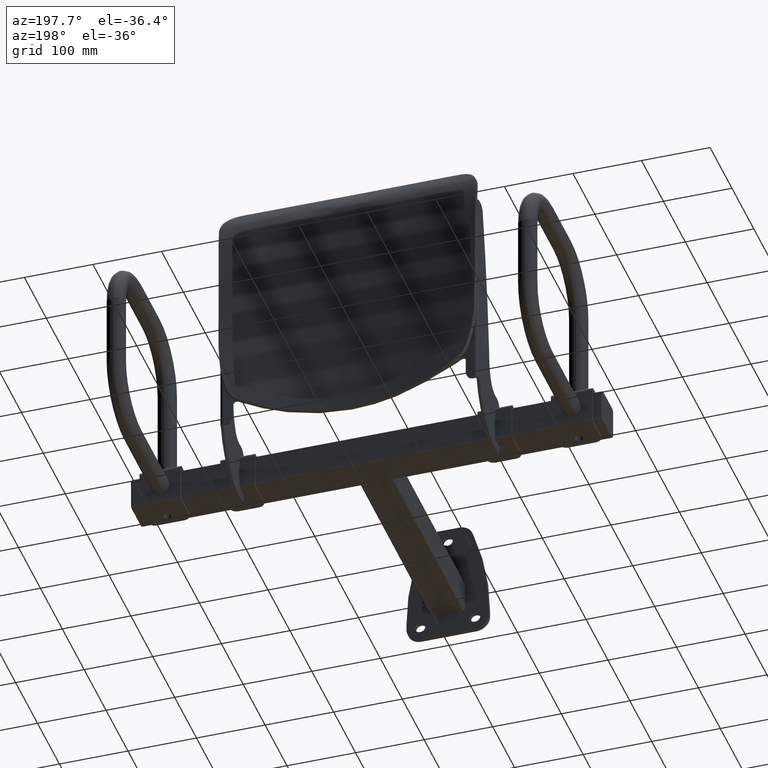
[diagram: clean part render]
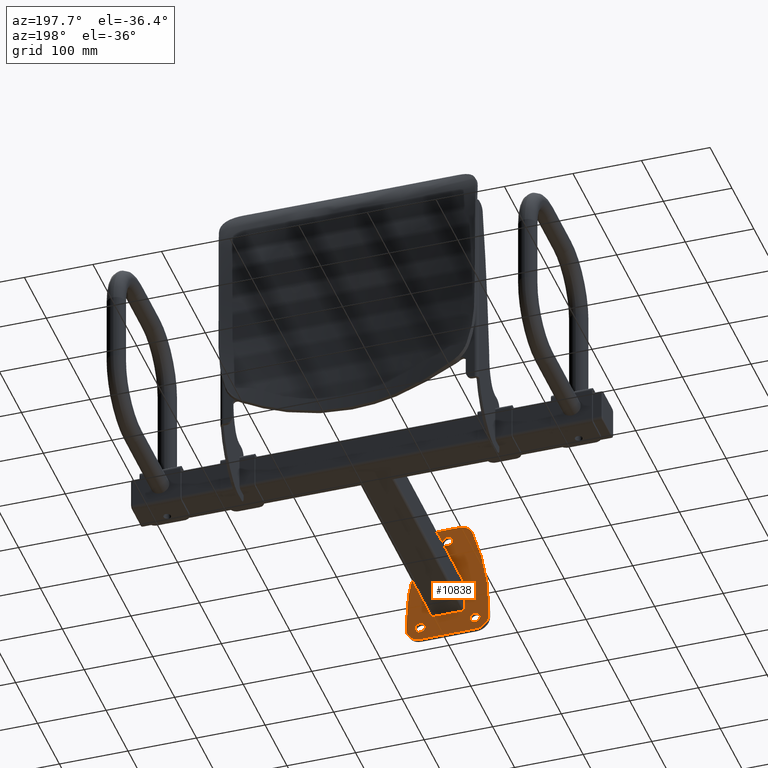
[diagram: same view with one face highlighted and labeled with its STEP entity id]
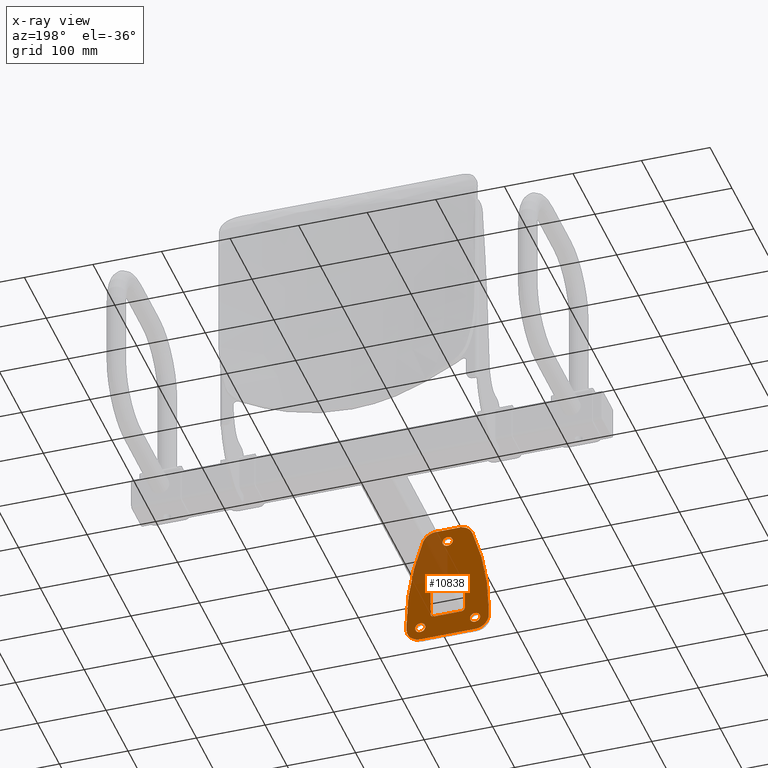
[diagram: x-ray of the same camera — body ghosted, the highlighted face saturated]
A machine part, auxiliary view. The second image highlights one B-rep face of the part: STEP entity #10838.
The next image is the same camera in x-ray: the body ghosted, the highlighted face saturated — about 21% of this face is hidden behind the body in this view.
In plain terms, the highlighted planar face has unit normal (0, -1, 0).
Its self-contained STEP definition (entity closure, byte-faithful):
#970 = LINE ( 'NONE', #13550, #978 ) ;
#974 = CIRCLE ( 'NONE', #4275, 5.000000000000000900 ) ;
#976 = CIRCLE ( 'NONE', #4278, 5.000000000000000900 ) ;
#977 = CIRCLE ( 'NONE', #4276, 5.000000000000000900 ) ;
#978 = VECTOR ( 'NONE', #13544, 1000.000000000000000 ) ;
#979 = LINE ( 'NONE', #13549, #981 ) ;
#980 = CIRCLE ( 'NONE', #4277, 5.000000000000000900 ) ;
#981 = VECTOR ( 'NONE', #13548, 1000.000000000000000 ) ;
#982 = LINE ( 'NONE', #13554, #984 ) ;
#983 = CIRCLE ( 'NONE', #4280, 7.500000000000000000 ) ;
#984 = VECTOR ( 'NONE', #13555, 1000.000000000000000 ) ;
#985 = LINE ( 'NONE', #5827, #987 ) ;
#986 = CIRCLE ( 'NONE', #4279, 7.500000000000007100 ) ;
#987 = VECTOR ( 'NONE', #5832, 1000.000000000000000 ) ;
#988 = CIRCLE ( 'NONE', #4281, 7.500000000000000000 ) ;
#989 = CIRCLE ( 'NONE', #4282, 20.00000000000000400 ) ;
#990 = CIRCLE ( 'NONE', #4283, 400.0000000000000000 ) ;
#991 = LINE ( 'NONE', #5847, #994 ) ;
#992 = CIRCLE ( 'NONE', #4287, 20.00000000000000400 ) ;
#993 = CIRCLE ( 'NONE', #4284, 20.00000000000000400 ) ;
#994 = VECTOR ( 'NONE', #5828, 1000.000000000000000 ) ;
#995 = LINE ( 'NONE', #5833, #997 ) ;
#996 = CIRCLE ( 'NONE', #4285, 20.00000000000000400 ) ;
#997 = VECTOR ( 'NONE', #5846, 1000.000000000000000 ) ;
#998 = LINE ( 'NONE', #5851, #1000 ) ;
#999 = CIRCLE ( 'NONE', #4286, 400.0000000000000000 ) ;
#1000 = VECTOR ( 'NONE', #5852, 1000.000000000000000 ) ;
#1002 = LINE ( 'NONE', #5860, #1004 ) ;
#1004 = VECTOR ( 'NONE', #5859, 1000.000000000000000 ) ;
#1005 = CIRCLE ( 'NONE', #4288, 7.500000000000000000 ) ;
#1132 = CIRCLE ( 'NONE', #12462, 7.500000000000000000 ) ;
#1139 = CIRCLE ( 'NONE', #12464, 7.500000000000007100 ) ;
#1210 = EDGE_LOOP ( 'NONE', ( #11584, #11581 ) ) ;
#1659 = DIRECTION ( 'NONE',  ( 0.0000000000000000000, -1.000000000000000000, 0.0000000000000000000 ) ) ;
#1666 = PLANE ( 'NONE',  #12520 ) ;
#1668 = CARTESIAN_POINT ( 'NONE',  ( -60.00000000000000000, 6.000000000000000000, 120.0000000000000100 ) ) ;
#1672 = DIRECTION ( 'NONE',  ( 0.0000000000000000000, -0.0000000000000000000, -1.000000000000000000 ) ) ;
#4275 = AXIS2_PLACEMENT_3D ( 'NONE', #13551, #13552, #13553 ) ;
#4276 = AXIS2_PLACEMENT_3D ( 'NONE', #13556, #13557, #13558 ) ;
#4277 = AXIS2_PLACEMENT_3D ( 'NONE', #13560, #5825, #5826 ) ;
#4278 = AXIS2_PLACEMENT_3D ( 'NONE', #5829, #5830, #5831 ) ;
#4279 = AXIS2_PLACEMENT_3D ( 'NONE', #5834, #5835, #5836 ) ;
#4280 = AXIS2_PLACEMENT_3D ( 'NONE', #5837, #5838, #5839 ) ;
#4281 = AXIS2_PLACEMENT_3D ( 'NONE', #5840, #5841, #5842 ) ;
#4282 = AXIS2_PLACEMENT_3D ( 'NONE', #5843, #5844, #5845 ) ;
#4283 = AXIS2_PLACEMENT_3D ( 'NONE', #5848, #5849, #5850 ) ;
#4284 = AXIS2_PLACEMENT_3D ( 'NONE', #5853, #5854, #5855 ) ;
#4285 = AXIS2_PLACEMENT_3D ( 'NONE', #5856, #5857, #5858 ) ;
#4286 = AXIS2_PLACEMENT_3D ( 'NONE', #5861, #5862, #5863 ) ;
#4287 = AXIS2_PLACEMENT_3D ( 'NONE', #5865, #5866, #5867 ) ;
#4288 = AXIS2_PLACEMENT_3D ( 'NONE', #5871, #5872, #5873 ) ;
#4444 = ORIENTED_EDGE ( 'NONE', *, *, #5731, .F. ) ;
#4445 = ORIENTED_EDGE ( 'NONE', *, *, #5732, .T. ) ;
#4446 = ORIENTED_EDGE ( 'NONE', *, *, #5727, .T. ) ;
#4447 = ORIENTED_EDGE ( 'NONE', *, *, #5728, .T. ) ;
#4448 = ORIENTED_EDGE ( 'NONE', *, *, #5729, .T. ) ;
#4449 = ORIENTED_EDGE ( 'NONE', *, *, #5730, .T. ) ;
#4450 = ORIENTED_EDGE ( 'NONE', *, *, #5733, .T. ) ;
#4452 = ORIENTED_EDGE ( 'NONE', *, *, #5723, .F. ) ;
#4453 = ORIENTED_EDGE ( 'NONE', *, *, #5724, .T. ) ;
#4537 = EDGE_LOOP ( 'NONE', ( #11484, #12552 ) ) ;
#4558 = EDGE_LOOP ( 'NONE', ( #4450, #4445, #4444, #4449, #4448, #4447, #4446, #11615, #11577, #4453 ) ) ;
#4559 = EDGE_LOOP ( 'NONE', ( #4452, #11614 ) ) ;
#4560 = EDGE_LOOP ( 'NONE', ( #12564, #12550, #12554, #11586, #12553, #11590, #12551, #12549 ) ) ;
#4607 = CARTESIAN_POINT ( 'NONE',  ( 40.00000000000003600, 6.000000000000000000, -32.49999999999997900 ) ) ;
#4608 = CARTESIAN_POINT ( 'NONE',  ( 40.00000000000003600, 6.000000000000000000, -59.99999999999998600 ) ) ;
#4610 = CARTESIAN_POINT ( 'NONE',  ( -40.00000000000002800, 6.000000000000000000, -32.49999999999996400 ) ) ;
#4612 = CARTESIAN_POINT ( 'NONE',  ( 40.00000000000003600, 6.000000000000000000, -47.49999999999997900 ) ) ;
#4613 = CARTESIAN_POINT ( 'NONE',  ( -40.00000000000002800, 6.000000000000000000, -47.49999999999996400 ) ) ;
#4621 = CARTESIAN_POINT ( 'NONE',  ( -35.86465413383421500, 6.000000000000000000, 106.8421052631579500 ) ) ;
#4631 = CARTESIAN_POINT ( 'NONE',  ( 9.184850993605149900E-016, 6.000000000000000000, 92.50000000000000000 ) ) ;
#4632 = CARTESIAN_POINT ( 'NONE',  ( 35.86465413383421500, 6.000000000000000000, 106.8421052631579500 ) ) ;
#4638 = CARTESIAN_POINT ( 'NONE',  ( -17.07142142714251800, 6.000000000000000000, 120.0000000000000100 ) ) ;
#4670 = CARTESIAN_POINT ( 'NONE',  ( -40.00000000000002100, 6.000000000000000000, -59.99999999999998600 ) ) ;
#4674 = CARTESIAN_POINT ( 'NONE',  ( -60.00000000000003600, 6.000000000000000000, -39.99999999999990800 ) ) ;
#4676 = CARTESIAN_POINT ( 'NONE',  ( 25.00000000000004300, 6.000000000000011500, 20.00000000000000000 ) ) ;
#4779 = CARTESIAN_POINT ( 'NONE',  ( 17.07142142714251800, 6.000000000000000000, 120.0000000000000100 ) ) ;
#4783 = CARTESIAN_POINT ( 'NONE',  ( 60.00000000000004300, 6.000000000000000000, -29.99999999999998600 ) ) ;
#4785 = CARTESIAN_POINT ( 'NONE',  ( -60.00000000000004300, 6.000000000000000000, -29.99999999999998600 ) ) ;
#4788 = CARTESIAN_POINT ( 'NONE',  ( 60.00000000000003600, 6.000000000000000000, -39.99999999999990800 ) ) ;
#4791 = CARTESIAN_POINT ( 'NONE',  ( 25.00000000000004300, 6.000000000000011500, -19.99999999999999600 ) ) ;
#4798 = CARTESIAN_POINT ( 'NONE',  ( 0.0000000000000000000, 6.000000000000000000, 107.5000000000000100 ) ) ;
#5527 = VERTEX_POINT ( 'NONE', #4779 ) ;
#5531 = VERTEX_POINT ( 'NONE', #4783 ) ;
#5533 = VERTEX_POINT ( 'NONE', #4785 ) ;
#5536 = VERTEX_POINT ( 'NONE', #4788 ) ;
#5541 = VERTEX_POINT ( 'NONE', #4791 ) ;
#5548 = VERTEX_POINT ( 'NONE', #4798 ) ;
#5552 = VERTEX_POINT ( 'NONE', #13419 ) ;
#5638 = VERTEX_POINT ( 'NONE', #13454 ) ;
#5640 = VERTEX_POINT ( 'NONE', #13456 ) ;
#5641 = VERTEX_POINT ( 'NONE', #13457 ) ;
#5644 = VERTEX_POINT ( 'NONE', #13460 ) ;
#5698 = VERTEX_POINT ( 'NONE', #13514 ) ;
#5713 = EDGE_CURVE ( 'NONE', #5698, #5541, #974, .T. ) ;
#5714 = EDGE_CURVE ( 'NONE', #5638, #5698, #970, .T. ) ;
#5715 = EDGE_CURVE ( 'NONE', #5644, #5638, #977, .T. ) ;
#5716 = EDGE_CURVE ( 'NONE', #5641, #5644, #979, .T. ) ;
#5717 = EDGE_CURVE ( 'NONE', #5552, #5641, #980, .T. ) ;
#5718 = EDGE_CURVE ( 'NONE', #5552, #5640, #982, .T. ) ;
#5719 = EDGE_CURVE ( 'NONE', #10569, #5640, #976, .T. ) ;
#5720 = EDGE_CURVE ( 'NONE', #10569, #5541, #985, .T. ) ;
#5721 = EDGE_CURVE ( 'NONE', #5548, #9837, #986, .T. ) ;
#5722 = EDGE_CURVE ( 'NONE', #9813, #9818, #983, .T. ) ;
#5723 = EDGE_CURVE ( 'NONE', #9816, #9819, #988, .T. ) ;
#5724 = EDGE_CURVE ( 'NONE', #9827, #9844, #989, .T. ) ;
#5725 = EDGE_CURVE ( 'NONE', #9827, #5533, #990, .T. ) ;
#5726 = EDGE_CURVE ( 'NONE', #10567, #5533, #991, .T. ) ;
#5727 = EDGE_CURVE ( 'NONE', #10563, #10567, #993, .T. ) ;
#5728 = EDGE_CURVE ( 'NONE', #9814, #10563, #995, .T. ) ;
#5729 = EDGE_CURVE ( 'NONE', #5536, #9814, #996, .T. ) ;
#5730 = EDGE_CURVE ( 'NONE', #5531, #5536, #998, .T. ) ;
#5731 = EDGE_CURVE ( 'NONE', #5531, #9838, #999, .T. ) ;
#5732 = EDGE_CURVE ( 'NONE', #5527, #9838, #992, .T. ) ;
#5733 = EDGE_CURVE ( 'NONE', #9844, #5527, #1002, .T. ) ;
#5735 = EDGE_CURVE ( 'NONE', #9819, #9816, #1005, .T. ) ;
#5825 = DIRECTION ( 'NONE',  ( -0.0000000000000000000, -1.000000000000000000, 0.0000000000000000000 ) ) ;
#5826 = DIRECTION ( 'NONE',  ( 0.0000000000000000000, 0.0000000000000000000, -1.000000000000000000 ) ) ;
#5827 = CARTESIAN_POINT ( 'NONE',  ( 25.00000000000004300, 6.000000000000011500, 25.00000000000000000 ) ) ;
#5828 = DIRECTION ( 'NONE',  ( 2.312964634635743000E-016, -0.0000000000000000000, 1.000000000000000000 ) ) ;
#5829 = CARTESIAN_POINT ( 'NONE',  ( 20.00000000000004300, 6.000000000000000000, 20.00000000000000000 ) ) ;
#5830 = DIRECTION ( 'NONE',  ( -0.0000000000000000000, -1.000000000000000000, 0.0000000000000000000 ) ) ;
#5831 = DIRECTION ( 'NONE',  ( 0.0000000000000000000, 0.0000000000000000000, -1.000000000000000000 ) ) ;
#5832 = DIRECTION ( 'NONE',  ( -0.0000000000000000000, -0.0000000000000000000, -1.000000000000000000 ) ) ;
#5833 = CARTESIAN_POINT ( 'NONE',  ( 60.00000000000004300, 6.000000000000000000, -59.99999999999998600 ) ) ;
#5834 = CARTESIAN_POINT ( 'NONE',  ( 0.0000000000000000000, 6.000000000000000000, 100.0000000000000000 ) ) ;
#5835 = DIRECTION ( 'NONE',  ( 0.0000000000000000000, 1.000000000000000000, 0.0000000000000000000 ) ) ;
#5836 = DIRECTION ( 'NONE',  ( 0.0000000000000000000, 0.0000000000000000000, 1.000000000000000000 ) ) ;
#5837 = CARTESIAN_POINT ( 'NONE',  ( 40.00000000000003600, 6.000000000000000000, -39.99999999999997900 ) ) ;
#5838 = DIRECTION ( 'NONE',  ( 0.0000000000000000000, 1.000000000000000000, 0.0000000000000000000 ) ) ;
#5839 = DIRECTION ( 'NONE',  ( 0.0000000000000000000, 0.0000000000000000000, 1.000000000000000000 ) ) ;
#5840 = CARTESIAN_POINT ( 'NONE',  ( -40.00000000000002800, 6.000000000000000000, -39.99999999999996400 ) ) ;
#5841 = DIRECTION ( 'NONE',  ( 0.0000000000000000000, 1.000000000000000000, 0.0000000000000000000 ) ) ;
#5842 = DIRECTION ( 'NONE',  ( 0.0000000000000000000, 0.0000000000000000000, 1.000000000000000000 ) ) ;
#5843 = CARTESIAN_POINT ( 'NONE',  ( -17.07142142714251800, 6.000000000000000000, 100.0000000000000100 ) ) ;
#5844 = DIRECTION ( 'NONE',  ( 0.0000000000000000000, 1.000000000000000000, -0.0000000000000000000 ) ) ;
#5845 = DIRECTION ( 'NONE',  ( 8.673617379884033500E-016, 0.0000000000000000000, -1.000000000000000000 ) ) ;
#5846 = DIRECTION ( 'NONE',  ( -1.000000000000000000, 0.0000000000000000000, 0.0000000000000000000 ) ) ;
#5847 = CARTESIAN_POINT ( 'NONE',  ( -60.00000000000000000, 6.000000000000000000, 120.0000000000000100 ) ) ;
#5848 = CARTESIAN_POINT ( 'NONE',  ( 339.9999999999999400, 6.000000000000000000, -29.99999999999998600 ) ) ;
#5849 = DIRECTION ( 'NONE',  ( -0.0000000000000000000, -1.000000000000000000, -0.0000000000000000000 ) ) ;
#5850 = DIRECTION ( 'NONE',  ( 0.0000000000000000000, 0.0000000000000000000, 1.000000000000000000 ) ) ;
#5851 = CARTESIAN_POINT ( 'NONE',  ( 60.00000000000000000, 6.000000000000000000, 120.0000000000000100 ) ) ;
#5852 = DIRECTION ( 'NONE',  ( 2.312964634635743000E-016, 0.0000000000000000000, -1.000000000000000000 ) ) ;
#5853 = CARTESIAN_POINT ( 'NONE',  ( -40.00000000000002800, 6.000000000000000000, -39.99999999999996400 ) ) ;
#5854 = DIRECTION ( 'NONE',  ( 0.0000000000000000000, 1.000000000000000000, -0.0000000000000000000 ) ) ;
#5855 = DIRECTION ( 'NONE',  ( 0.0000000000000000000, 0.0000000000000000000, -1.000000000000000000 ) ) ;
#5856 = CARTESIAN_POINT ( 'NONE',  ( 40.00000000000003600, 6.000000000000000000, -39.99999999999997900 ) ) ;
#5857 = DIRECTION ( 'NONE',  ( 0.0000000000000000000, 1.000000000000000000, -0.0000000000000000000 ) ) ;
#5858 = DIRECTION ( 'NONE',  ( 0.0000000000000000000, 0.0000000000000000000, -1.000000000000000000 ) ) ;
#5859 = DIRECTION ( 'NONE',  ( 1.000000000000000000, -0.0000000000000000000, -0.0000000000000000000 ) ) ;
#5860 = CARTESIAN_POINT ( 'NONE',  ( 60.00000000000000000, 6.000000000000000000, 120.0000000000000100 ) ) ;
#5861 = CARTESIAN_POINT ( 'NONE',  ( -339.9999999999999400, 6.000000000000000000, -29.99999999999998600 ) ) ;
#5862 = DIRECTION ( 'NONE',  ( 0.0000000000000000000, -1.000000000000000000, 0.0000000000000000000 ) ) ;
#5863 = DIRECTION ( 'NONE',  ( 0.0000000000000000000, 0.0000000000000000000, -1.000000000000000000 ) ) ;
#5865 = CARTESIAN_POINT ( 'NONE',  ( 17.07142142714251800, 6.000000000000000000, 100.0000000000000100 ) ) ;
#5866 = DIRECTION ( 'NONE',  ( 0.0000000000000000000, 1.000000000000000000, -0.0000000000000000000 ) ) ;
#5867 = DIRECTION ( 'NONE',  ( 0.0000000000000000000, 0.0000000000000000000, -1.000000000000000000 ) ) ;
#5871 = CARTESIAN_POINT ( 'NONE',  ( -40.00000000000002800, 6.000000000000000000, -39.99999999999996400 ) ) ;
#5872 = DIRECTION ( 'NONE',  ( 0.0000000000000000000, 1.000000000000000000, 0.0000000000000000000 ) ) ;
#5873 = DIRECTION ( 'NONE',  ( 0.0000000000000000000, 0.0000000000000000000, 1.000000000000000000 ) ) ;
#5936 = EDGE_CURVE ( 'NONE', #9818, #9813, #1132, .T. ) ;
#5940 = EDGE_CURVE ( 'NONE', #9837, #5548, #1139, .T. ) ;
#9813 = VERTEX_POINT ( 'NONE', #4607 ) ;
#9814 = VERTEX_POINT ( 'NONE', #4608 ) ;
#9816 = VERTEX_POINT ( 'NONE', #4610 ) ;
#9818 = VERTEX_POINT ( 'NONE', #4612 ) ;
#9819 = VERTEX_POINT ( 'NONE', #4613 ) ;
#9827 = VERTEX_POINT ( 'NONE', #4621 ) ;
#9837 = VERTEX_POINT ( 'NONE', #4631 ) ;
#9838 = VERTEX_POINT ( 'NONE', #4632 ) ;
#9844 = VERTEX_POINT ( 'NONE', #4638 ) ;
#9910 = FACE_OUTER_BOUND ( 'NONE', #4558, .T. ) ;
#9919 = FACE_BOUND ( 'NONE', #4537, .T. ) ;
#9920 = FACE_BOUND ( 'NONE', #4560, .T. ) ;
#9921 = FACE_BOUND ( 'NONE', #1210, .T. ) ;
#9922 = FACE_BOUND ( 'NONE', #4559, .T. ) ;
#10563 = VERTEX_POINT ( 'NONE', #4670 ) ;
#10567 = VERTEX_POINT ( 'NONE', #4674 ) ;
#10569 = VERTEX_POINT ( 'NONE', #4676 ) ;
#10671 = DIRECTION ( 'NONE',  ( 0.0000000000000000000, 0.0000000000000000000, 1.000000000000000000 ) ) ;
#10838 = ADVANCED_FACE ( 'NONE', ( #9910, #9922, #9919, #9921, #9920 ), #1666, .F. ) ;
#11484 = ORIENTED_EDGE ( 'NONE', *, *, #5722, .F. ) ;
#11577 = ORIENTED_EDGE ( 'NONE', *, *, #5725, .F. ) ;
#11581 = ORIENTED_EDGE ( 'NONE', *, *, #5940, .F. ) ;
#11584 = ORIENTED_EDGE ( 'NONE', *, *, #5721, .F. ) ;
#11586 = ORIENTED_EDGE ( 'NONE', *, *, #5717, .T. ) ;
#11590 = ORIENTED_EDGE ( 'NONE', *, *, #5715, .T. ) ;
#11614 = ORIENTED_EDGE ( 'NONE', *, *, #5735, .F. ) ;
#11615 = ORIENTED_EDGE ( 'NONE', *, *, #5726, .T. ) ;
#11792 = CARTESIAN_POINT ( 'NONE',  ( 40.00000000000003600, 6.000000000000000000, -39.99999999999997900 ) ) ;
#11793 = DIRECTION ( 'NONE',  ( 0.0000000000000000000, 1.000000000000000000, 0.0000000000000000000 ) ) ;
#11794 = DIRECTION ( 'NONE',  ( 0.0000000000000000000, 0.0000000000000000000, 1.000000000000000000 ) ) ;
#11802 = CARTESIAN_POINT ( 'NONE',  ( 0.0000000000000000000, 6.000000000000000000, 100.0000000000000000 ) ) ;
#11920 = DIRECTION ( 'NONE',  ( 0.0000000000000000000, 1.000000000000000000, 0.0000000000000000000 ) ) ;
#12462 = AXIS2_PLACEMENT_3D ( 'NONE', #11792, #11793, #11794 ) ;
#12464 = AXIS2_PLACEMENT_3D ( 'NONE', #11802, #11920, #10671 ) ;
#12520 = AXIS2_PLACEMENT_3D ( 'NONE', #1668, #1659, #1672 ) ;
#12549 = ORIENTED_EDGE ( 'NONE', *, *, #5713, .T. ) ;
#12550 = ORIENTED_EDGE ( 'NONE', *, *, #5719, .T. ) ;
#12551 = ORIENTED_EDGE ( 'NONE', *, *, #5714, .T. ) ;
#12552 = ORIENTED_EDGE ( 'NONE', *, *, #5936, .F. ) ;
#12553 = ORIENTED_EDGE ( 'NONE', *, *, #5716, .T. ) ;
#12554 = ORIENTED_EDGE ( 'NONE', *, *, #5718, .F. ) ;
#12564 = ORIENTED_EDGE ( 'NONE', *, *, #5720, .F. ) ;
#13419 = CARTESIAN_POINT ( 'NONE',  ( -19.99999999999995400, 6.000000000000006200, 25.00000000000000000 ) ) ;
#13454 = CARTESIAN_POINT ( 'NONE',  ( -19.99999999999995400, 6.000000000000006200, -25.00000000000000000 ) ) ;
#13456 = CARTESIAN_POINT ( 'NONE',  ( 20.00000000000004300, 6.000000000000010700, 25.00000000000000000 ) ) ;
#13457 = CARTESIAN_POINT ( 'NONE',  ( -24.99999999999996100, 6.000000000000005300, 20.00000000000000000 ) ) ;
#13460 = CARTESIAN_POINT ( 'NONE',  ( -24.99999999999996100, 6.000000000000005300, -19.99999999999999600 ) ) ;
#13514 = CARTESIAN_POINT ( 'NONE',  ( 20.00000000000004300, 6.000000000000010700, -25.00000000000000000 ) ) ;
#13544 = DIRECTION ( 'NONE',  ( 1.000000000000000000, 1.214306433183765000E-016, -0.0000000000000000000 ) ) ;
#13548 = DIRECTION ( 'NONE',  ( -0.0000000000000000000, -0.0000000000000000000, -1.000000000000000000 ) ) ;
#13549 = CARTESIAN_POINT ( 'NONE',  ( -24.99999999999996100, 6.000000000000005300, 25.00000000000000000 ) ) ;
#13550 = CARTESIAN_POINT ( 'NONE',  ( 25.00000000000004300, 6.000000000000011500, -25.00000000000000000 ) ) ;
#13551 = CARTESIAN_POINT ( 'NONE',  ( 20.00000000000004300, 6.000000000000005300, -19.99999999999999600 ) ) ;
#13552 = DIRECTION ( 'NONE',  ( -0.0000000000000000000, -1.000000000000000000, 0.0000000000000000000 ) ) ;
#13553 = DIRECTION ( 'NONE',  ( 0.0000000000000000000, 0.0000000000000000000, -1.000000000000000000 ) ) ;
#13554 = CARTESIAN_POINT ( 'NONE',  ( 25.00000000000004300, 6.000000000000011500, 25.00000000000000000 ) ) ;
#13555 = DIRECTION ( 'NONE',  ( 1.000000000000000000, 1.214306433183765000E-016, -0.0000000000000000000 ) ) ;
#13556 = CARTESIAN_POINT ( 'NONE',  ( -19.99999999999995700, 6.000000000000000000, -19.99999999999999600 ) ) ;
#13557 = DIRECTION ( 'NONE',  ( -0.0000000000000000000, -1.000000000000000000, 0.0000000000000000000 ) ) ;
#13558 = DIRECTION ( 'NONE',  ( 0.0000000000000000000, 0.0000000000000000000, -1.000000000000000000 ) ) ;
#13560 = CARTESIAN_POINT ( 'NONE',  ( -19.99999999999995700, 6.000000000000000000, 20.00000000000000000 ) ) ;